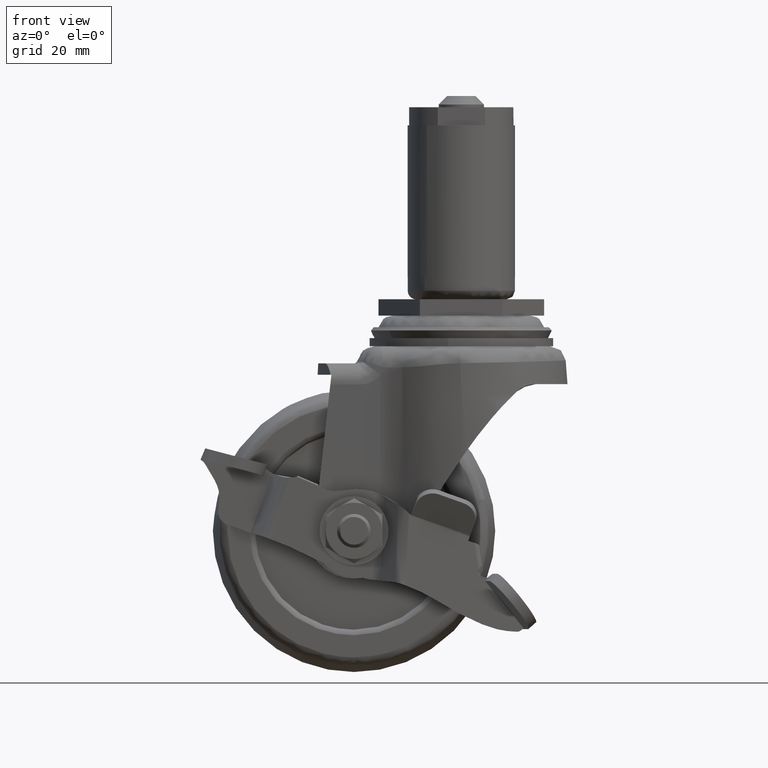
[diagram: clean part render]
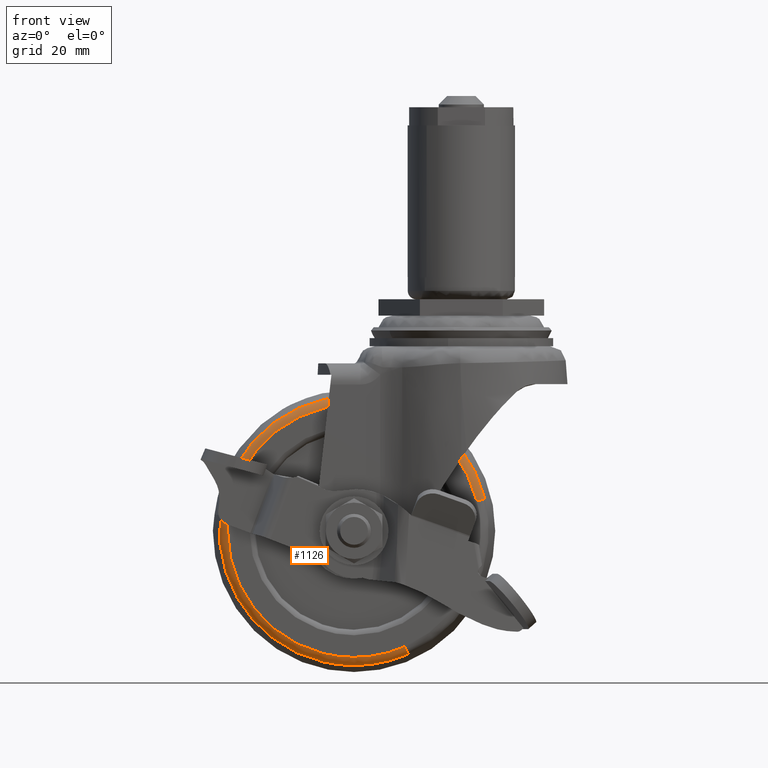
[diagram: same view with one face highlighted and labeled with its STEP entity id]
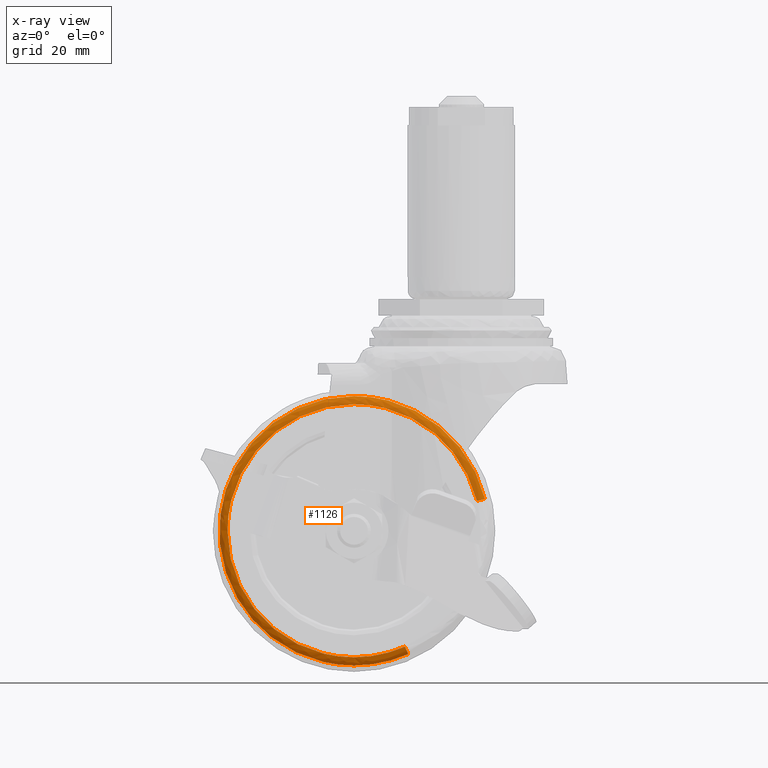
[diagram: x-ray of the same camera — body ghosted, the highlighted face saturated]
A machine part, front view. The second image highlights one B-rep face of the part: STEP entity #1126.
The next image is the same camera in x-ray: the body ghosted, the highlighted face saturated — about 0% of this face is hidden behind the body in this view.
In plain terms, the highlighted face is a freeform B-spline surface patch.
Its self-contained STEP definition (entity closure, byte-faithful):
#904=CARTESIAN_POINT('',(-9.983512796648736,-10.000099000000040,-61.509660136653522));
#905=VERTEX_POINT('',#904);
#906=CARTESIAN_POINT('',(2.768149373497545,-10.000099000000031,-35.701967559477751));
#907=VERTEX_POINT('',#906);
#922=CARTESIAN_POINT('',(-9.399585676374150,-8.880696015885199,-62.837882612725409));
#923=VERTEX_POINT('',#922);
#924=CARTESIAN_POINT('',(-9.399585676374150,-8.880696015885199,-62.837882612725409));
#925=CARTESIAN_POINT('',(-9.414242310403218,-9.019755178015325,-62.804544084594781));
#926=CARTESIAN_POINT('',(-9.463079811340700,-9.306362688196039,-62.693456477697922));
#927=CARTESIAN_POINT('',(-9.588370919504408,-9.670005055202280,-62.408464635189262));
#928=CARTESIAN_POINT('',(-9.768682851084696,-9.934744349092220,-61.998320369022302));
#929=CARTESIAN_POINT('',(-9.909121600165795,-10.000254310191441,-61.678873135638497));
#930=CARTESIAN_POINT('',(-9.983512796648736,-10.000099000000040,-61.509660136653522));
#931=B_SPLINE_CURVE_WITH_KNOTS('',3,(#924,#925,#926,#927,#928,#929,#930),.UNSPECIFIED.,.F.,.U.,(4,1,1,1,4),(0.000000133131363,0.431270441191286,0.924158609362853,1.417036348607001,1.971529071204949),.UNSPECIFIED.);
#932=EDGE_CURVE('',#923,#905,#931,.T.);
#934=CARTESIAN_POINT('',(4.177901481494555,-8.880696018716346,-35.358828339124777));
#935=VERTEX_POINT('',#934);
#952=CARTESIAN_POINT('',(4.177901481494555,-8.880696018716346,-35.358828339124777));
#953=CARTESIAN_POINT('',(4.142513487340865,-9.019750097093699,-35.367441916512497));
#954=CARTESIAN_POINT('',(4.024614092605611,-9.306365248293679,-35.396139094144992));
#955=CARTESIAN_POINT('',(3.722122874043424,-9.670005016321117,-35.469766649291572));
#956=CARTESIAN_POINT('',(3.286804481647721,-9.934741957525047,-35.575724861952359));
#957=CARTESIAN_POINT('',(2.947751594430112,-10.000255496580030,-35.658251671050209));
#958=CARTESIAN_POINT('',(2.768149373497545,-10.000099000000031,-35.701967559477751));
#959=B_SPLINE_CURVE_WITH_KNOTS('',3,(#952,#953,#954,#955,#956,#957,#958),.UNSPECIFIED.,.F.,.U.,(4,1,1,1,4),(0.000000133132127,0.431270414607928,0.924158552394924,1.417036261258652,1.971528949676522),.UNSPECIFIED.);
#960=EDGE_CURVE('',#935,#907,#959,.T.);
#965=CARTESIAN_POINT('',(4.197662554028035,-8.792371263837344,-35.354018416106484));
#966=CARTESIAN_POINT('',(-1.448740029865582,-8.792371263837346,-12.156355862078454));
#967=CARTESIAN_POINT('',(-24.646402583893618,-8.792371263837344,-17.802758445972067));
#968=CARTESIAN_POINT('',(-47.844065137921646,-8.792371263837346,-23.449161029865689));
#969=CARTESIAN_POINT('',(-42.197662554028035,-8.792371263837344,-46.646823583893713));
#970=CARTESIAN_POINT('',(-36.551259970134410,-8.792371263837346,-69.844486137921749));
#971=CARTESIAN_POINT('',(-13.353597416106386,-8.792371263837344,-64.198083554028130));
#972=CARTESIAN_POINT('',(-11.313507039709119,-8.792371263837344,-63.701517507951849));
#973=CARTESIAN_POINT('',(-9.391400531695615,-8.792371263837342,-62.856500849041097));
#974=CARTESIAN_POINT('',(3.949841192374694,-10.076285331351936,-35.414339113225189));
#975=CARTESIAN_POINT('',(-1.636240694400218,-10.076285331351936,-12.464497920850503));
#976=CARTESIAN_POINT('',(-24.586081886774913,-10.076285331351936,-18.050579807625411));
#977=CARTESIAN_POINT('',(-47.535923079149605,-10.076285331351936,-23.636661694400310));
#978=CARTESIAN_POINT('',(-41.949841192374706,-10.076285331351936,-46.586502886775008));
#979=CARTESIAN_POINT('',(-36.363759305599778,-10.076285331351936,-69.536344079149714));
#980=CARTESIAN_POINT('',(-13.413918113225087,-10.076285331351936,-63.950262192374801));
#981=CARTESIAN_POINT('',(-11.395622086745503,-10.076285331351938,-63.459000977050422));
#982=CARTESIAN_POINT('',(-9.494049503257761,-10.076285331351935,-62.623011657792674));
#983=CARTESIAN_POINT('',(2.680285504673770,-9.997370713933062,-35.723353976198382));
#984=CARTESIAN_POINT('',(-2.596781519127948,-9.997370713933062,-14.043068471524618));
#985=CARTESIAN_POINT('',(-24.277067023801724,-9.997370713933062,-19.320135495326337));
#986=CARTESIAN_POINT('',(-45.957352528475482,-9.997370713933062,-24.597202519128039));
#987=CARTESIAN_POINT('',(-40.680285504673783,-9.997370713933062,-46.277488023801830));
#988=CARTESIAN_POINT('',(-35.403218480872042,-9.997370713933062,-67.957773528475585));
#989=CARTESIAN_POINT('',(-13.722932976198278,-9.997370713933062,-62.680706504673886));
#990=CARTESIAN_POINT('',(-11.816286489181856,-9.997370713933066,-62.216621227728936));
#991=CARTESIAN_POINT('',(-10.019906454466312,-9.997370713933064,-61.426877762036113));
#999=(BOUNDED_SURFACE()B_SPLINE_SURFACE(2,2,((#965,#974,#983),(#966,#975,#984),(#967,#976,#985),(#968,#977,#986),(#969,#978,#987),(#970,#979,#988),(#971,#980,#989),(#972,#981,#990),(#973,#982,#991)),.UNSPECIFIED.,.F.,.F.,.U.)B_SPLINE_SURFACE_WITH_KNOTS((3,2,2,2,3),(3,3),(0.0,39.557318353153128,79.114636706306257,118.671955059459410,123.418833261837800),(0.0,2.249885817185783),.UNSPECIFIED.)GEOMETRIC_REPRESENTATION_ITEM()RATIONAL_B_SPLINE_SURFACE(((0.917839954468515,0.692204581920035,0.919596177681326),(0.649010855848639,0.489462553844056,0.650252693191695),(0.917839954468515,0.692204581920035,0.919596177681326),(0.649010855848639,0.489462553844056,0.650252693191695),(0.917839954468515,0.692204581920035,0.919596177681326),(0.649010855848639,0.489462553844056,0.650252693191695),(0.917839954468515,0.692204581920035,0.919596177681326),(0.885580462634130,0.667875538550917,0.887274959542570),(0.861063248839998,0.649385465590388,0.862710833757116)))REPRESENTATION_ITEM('')SURFACE());
#1000=CARTESIAN_POINT('',(-19.0,-10.000099000000080,-63.404124492039401));
#1001=VERTEX_POINT('',#1000);
#1002=CARTESIAN_POINT('',(-19.0,-10.000099000000080,-63.404124492039401));
#1003=CARTESIAN_POINT('',(-17.550056186809190,-10.000099000000059,-63.404280127261721));
#1004=CARTESIAN_POINT('',(-14.456948527587061,-10.000099000000141,-63.102770023646251));
#1005=CARTESIAN_POINT('',(-11.487705536787031,-10.000099000000020,-62.171290814277043));
#1006=CARTESIAN_POINT('',(-9.983512796648736,-10.000099000000040,-61.509660136653522));
#1007=B_SPLINE_CURVE_WITH_KNOTS('',3,(#1002,#1003,#1004,#1005,#1006),.UNSPECIFIED.,.F.,.U.,(4,1,4),(7.319965E-009,4.349807000829228,9.279569039155897),.UNSPECIFIED.);
#1008=EDGE_CURVE('',#1001,#905,#1007,.T.);
#1009=ORIENTED_EDGE('',*,*,#1008,.F.);
#1010=CARTESIAN_POINT('',(-41.403703492039263,-10.000099000000080,-41.000422237602727));
#1011=VERTEX_POINT('',#1010);
#1012=CARTESIAN_POINT('',(-41.403703492039263,-10.000099000000080,-41.000422237602727));
#1013=CARTESIAN_POINT('',(-41.403846926098112,-10.000099000000080,-42.420927829939380));
#1014=CARTESIAN_POINT('',(-41.154463709605537,-10.000099000000111,-45.032739659369987));
#1015=CARTESIAN_POINT('',(-40.161342621958383,-10.000099000000050,-48.621314830072272));
#1016=CARTESIAN_POINT('',(-38.575786541258353,-10.000099000000100,-52.140171261851727));
#1017=CARTESIAN_POINT('',(-36.386437029594283,-10.000099000000089,-55.331392447698292));
#1018=CARTESIAN_POINT('',(-33.785887266402490,-10.000099000000070,-57.931599732759167));
#1019=CARTESIAN_POINT('',(-31.436722354256950,-10.000099000000080,-59.696276723104347));
#1020=CARTESIAN_POINT('',(-29.097370223072961,-10.000099000000080,-61.059678402522913));
#1021=CARTESIAN_POINT('',(-26.231346678625361,-10.000099000000089,-62.298852375052178));
#1022=CARTESIAN_POINT('',(-22.803240909592109,-10.000099000000080,-63.191043622969318));
#1023=CARTESIAN_POINT('',(-20.237203626819849,-10.000099000000080,-63.404217520361343));
#1024=CARTESIAN_POINT('',(-19.0,-10.000099000000080,-63.404124492039401));
#1025=B_SPLINE_CURVE_WITH_KNOTS('',3,(#1012,#1013,#1014,#1015,#1016,#1017,#1018,#1019,#1020,#1021,#1022,#1023,#1024),.UNSPECIFIED.,.F.,.U.,(4,1,1,1,1,1,1,1,1,1,4),(0.000000101872097,4.261489500074262,7.835647964956984,11.134894479324650,15.808826176388290,19.382885958286469,22.132252931936840,24.606690034465959,27.493526738162711,31.480104568105421,35.191709659859107),.UNSPECIFIED.);
#1026=EDGE_CURVE('',#1011,#1001,#1025,.T.);
#1027=ORIENTED_EDGE('',*,*,#1026,.F.);
#1028=CARTESIAN_POINT('',(-19.0,-10.000099000000080,-18.596717507960800));
#1029=VERTEX_POINT('',#1028);
#1030=CARTESIAN_POINT('',(-19.0,-10.000099000000080,-18.596717507960800));
#1031=CARTESIAN_POINT('',(-20.420506612648062,-10.000099000000070,-18.596564556759290));
#1032=CARTESIAN_POINT('',(-23.032317231724520,-10.000099000000111,-18.845968818731301));
#1033=CARTESIAN_POINT('',(-26.620901128653578,-10.000099000000059,-19.839062737931862));
#1034=CARTESIAN_POINT('',(-29.846457811027129,-10.000099000000089,-21.292588748821519));
#1035=CARTESIAN_POINT('',(-32.423552989099392,-10.000099000000120,-22.980494427025992));
#1036=CARTESIAN_POINT('',(-34.820539878671710,-10.000099000000009,-25.048154233977339));
#1037=CARTESIAN_POINT('',(-37.058828613948272,-10.000099000000089,-27.548280246576709));
#1038=CARTESIAN_POINT('',(-39.243003580579298,-10.000099000000301,-31.068418593416290));
#1039=CARTESIAN_POINT('',(-40.958047238545987,-10.000098999999819,-35.639446668516960));
#1040=CARTESIAN_POINT('',(-41.404261662848597,-10.000099000000370,-39.075833058482253));
#1041=CARTESIAN_POINT('',(-41.403703492039263,-10.000099000000080,-41.000422237602727));
#1042=B_SPLINE_CURVE_WITH_KNOTS('',3,(#1030,#1031,#1032,#1033,#1034,#1035,#1036,#1037,#1038,#1039,#1040,#1041),.UNSPECIFIED.,.F.,.U.,(4,1,1,1,1,1,1,1,1,4),(0.000000101662351,4.261489668948073,7.835648275412769,11.134894920594281,14.846544573661889,17.046034516797089,20.620101626972762,24.881627510594750,29.418094414460139,35.191711054928227),.UNSPECIFIED.);
#1043=EDGE_CURVE('',#1029,#1011,#1042,.T.);
#1044=ORIENTED_EDGE('',*,*,#1043,.F.);
#1045=CARTESIAN_POINT('',(2.768149373497545,-10.000099000000031,-35.701967559477751));
#1046=CARTESIAN_POINT('',(2.345852489082182,-10.000099000000050,-33.965079580628768));
#1047=CARTESIAN_POINT('',(1.356641858348208,-10.000099000000050,-31.326672874608679));
#1048=CARTESIAN_POINT('',(-0.705431185392307,-10.000099000000031,-27.931210167488839));
#1049=CARTESIAN_POINT('',(-2.793055639295405,-10.000099000000150,-25.409154327500691));
#1050=CARTESIAN_POINT('',(-5.467733360097811,-10.000099000000050,-23.022958163215321));
#1051=CARTESIAN_POINT('',(-8.494678057570766,-10.000098999999951,-21.094835193466199));
#1052=CARTESIAN_POINT('',(-12.011882472165700,-10.000099000000191,-19.605125387971949));
#1053=CARTESIAN_POINT('',(-15.502828790132170,-10.000099000000031,-18.772474582626039));
#1054=CARTESIAN_POINT('',(-17.912001271547339,-10.000099000000100,-18.596678236557391));
#1055=CARTESIAN_POINT('',(-19.0,-10.000099000000080,-18.596717507960800));
#1056=B_SPLINE_CURVE_WITH_KNOTS('',3,(#1045,#1046,#1047,#1048,#1049,#1050,#1051,#1052,#1053,#1054,#1055),.UNSPECIFIED.,.F.,.U.,(4,1,1,1,1,1,1,1,4),(0.000000029406447,5.362336618396157,8.393254727632385,11.890464908831540,15.154465294891210,19.117950028842600,22.615139835644381,26.578640691451898,29.842658272346551),.UNSPECIFIED.);
#1057=EDGE_CURVE('',#907,#1029,#1056,.T.);
#1058=ORIENTED_EDGE('',*,*,#1057,.F.);
#1059=ORIENTED_EDGE('',*,*,#960,.F.);
#1060=CARTESIAN_POINT('',(-19.0,-8.880696014993557,-17.145805411320168));
#1061=VERTEX_POINT('',#1060);
#1062=CARTESIAN_POINT('',(4.177901481494555,-8.880696018716346,-35.358828339124777));
#1063=CARTESIAN_POINT('',(3.845344327695349,-8.880696018432950,-33.991986553820659));
#1064=CARTESIAN_POINT('',(3.097536393508534,-8.880696017976863,-31.789471687644429));
#1065=CARTESIAN_POINT('',(1.662940428606489,-8.880696017397703,-28.985580008024289));
#1066=CARTESIAN_POINT('',(0.113902293670163,-8.880696016912538,-26.632408212386270));
#1067=CARTESIAN_POINT('',(-1.974369835748819,-8.880696016404640,-24.162297512951898));
#1068=CARTESIAN_POINT('',(-4.788326459854426,-8.880696015901243,-21.703909923820781));
#1069=CARTESIAN_POINT('',(-8.182981683357518,-8.880696015476474,-19.615372736688439));
#1070=CARTESIAN_POINT('',(-11.338198799137579,-8.880696015219456,-18.336766082355361));
#1071=CARTESIAN_POINT('',(-14.945453088614739,-8.880696015034211,-17.396582531532939));
#1072=CARTESIAN_POINT('',(-17.345021164602759,-8.880696014988624,-17.145527409739682));
#1073=CARTESIAN_POINT('',(-19.0,-8.880696014993557,-17.145805411320168));
#1074=B_SPLINE_CURVE_WITH_KNOTS('',3,(#1062,#1063,#1064,#1065,#1066,#1067,#1068,#1069,#1070,#1071,#1072,#1073),.UNSPECIFIED.,.F.,.U.,(4,1,1,1,1,1,1,1,1,4),(0.000000014700824,4.220137284017593,6.950854220785672,9.433312255357116,12.660509163594300,16.632391598677810,20.604293755891021,24.576236339808428,26.810459106600430,31.775333050948131),.UNSPECIFIED.);
#1075=EDGE_CURVE('',#935,#1061,#1074,.T.);
#1076=ORIENTED_EDGE('',*,*,#1075,.T.);
#1077=CARTESIAN_POINT('',(-42.695067302989600,-8.880696014956291,-38.246066195159052));
#1078=VERTEX_POINT('',#1077);
#1079=CARTESIAN_POINT('',(-19.0,-8.880696014993557,-17.145805411320168));
#1080=CARTESIAN_POINT('',(-20.220271841139262,-8.880696014989665,-17.145756782400891));
#1081=CARTESIAN_POINT('',(-22.886823023206212,-8.880696014981449,-17.350771331315869));
#1082=CARTESIAN_POINT('',(-26.453560272060379,-8.880696014971683,-18.240270923015469));
#1083=CARTESIAN_POINT('',(-29.960327177469129,-8.880696014963121,-19.714168437234530));
#1084=CARTESIAN_POINT('',(-32.713207582566021,-8.880696014957438,-21.385546131395959));
#1085=CARTESIAN_POINT('',(-35.342237587158372,-8.880696014952825,-23.533034021650600));
#1086=CARTESIAN_POINT('',(-37.647797726678007,-8.880696014949969,-25.968410881881471));
#1087=CARTESIAN_POINT('',(-39.521639202417852,-8.880696014949127,-28.697531543280281));
#1088=CARTESIAN_POINT('',(-41.053120366682180,-8.880696014949441,-31.726519647578399));
#1089=CARTESIAN_POINT('',(-42.118717005476377,-8.880696014951869,-34.764083313296183));
#1090=CARTESIAN_POINT('',(-42.564641786671316,-8.880696014954642,-37.123741606354969));
#1091=CARTESIAN_POINT('',(-42.695067302989600,-8.880696014956291,-38.246066195159052));
#1092=B_SPLINE_CURVE_WITH_KNOTS('',3,(#1079,#1080,#1081,#1082,#1083,#1084,#1085,#1086,#1087,#1088,#1089,#1090,#1091),.UNSPECIFIED.,.F.,.U.,(4,1,1,1,1,1,1,1,1,1,4),(0.000000081857529,3.660825504258519,7.999634857753545,10.982563871691941,15.050193419710810,17.626294631428920,21.151572189821341,25.083592883261741,27.524172570946671,31.320639099726439,34.710277279693202),.UNSPECIFIED.);
#1093=EDGE_CURVE('',#1061,#1078,#1092,.T.);
#1094=ORIENTED_EDGE('',*,*,#1093,.T.);
#1095=CARTESIAN_POINT('',(-19.0,-8.880696014925480,-64.855036588697899));
#1096=VERTEX_POINT('',#1095);
#1097=CARTESIAN_POINT('',(-42.695067302989600,-8.880696014956291,-38.246066195159052));
#1098=CARTESIAN_POINT('',(-42.834250292406807,-8.880696014953887,-39.442843111909852));
#1099=CARTESIAN_POINT('',(-42.930696298350163,-8.880696014949171,-41.857523403933079));
#1100=CARTESIAN_POINT('',(-42.515532316658678,-8.880696014942417,-45.564334636890699));
#1101=CARTESIAN_POINT('',(-41.591230538725561,-8.880696014936863,-48.908048298494357));
#1102=CARTESIAN_POINT('',(-40.143534369008719,-8.880696014931644,-52.226953630396437));
#1103=CARTESIAN_POINT('',(-38.006173813695582,-8.880696014927036,-55.665164375084707));
#1104=CARTESIAN_POINT('',(-34.843348022335597,-8.880696014922942,-59.056281945761391));
#1105=CARTESIAN_POINT('',(-31.407026284484601,-8.880696014921670,-61.488370362279881));
#1106=CARTESIAN_POINT('',(-28.446267081974661,-8.880696014920948,-62.959391319769153));
#1107=CARTESIAN_POINT('',(-25.587347733684361,-8.880696014921583,-64.000369736566654));
#1108=CARTESIAN_POINT('',(-22.457354541534428,-8.880696014922837,-64.691719750328204));
#1109=CARTESIAN_POINT('',(-20.100061154865561,-8.880696014924553,-64.855079044142741));
#1110=CARTESIAN_POINT('',(-19.0,-8.880696014925480,-64.855036588697899));
#1111=B_SPLINE_CURVE_WITH_KNOTS('',3,(#1097,#1098,#1099,#1100,#1101,#1102,#1103,#1104,#1105,#1106,#1107,#1108,#1109,#1110),.UNSPECIFIED.,.F.,.U.,(4,1,1,1,1,1,1,1,1,1,1,4),(0.000000115400660,3.614527179604529,7.229065156186223,11.157911331447110,13.986677610748700,18.072691759382408,23.258688927383421,27.816191656388451,30.644958124819588,33.159426560367251,36.931140311160313,40.231327283508847),.UNSPECIFIED.);
#1112=EDGE_CURVE('',#1078,#1096,#1111,.T.);
#1113=ORIENTED_EDGE('',*,*,#1112,.T.);
#1114=CARTESIAN_POINT('',(-19.0,-8.880696014925480,-64.855036588697899));
#1115=CARTESIAN_POINT('',(-17.816389844068041,-8.880696014925412,-64.855107089168911));
#1116=CARTESIAN_POINT('',(-15.706511494687460,-8.880696015000384,-64.697665578951131));
#1117=CARTESIAN_POINT('',(-12.477909165228350,-8.880696015323080,-64.019308210509948));
#1118=CARTESIAN_POINT('',(-10.483081470658560,-8.880696015658545,-63.314293419520183));
#1119=CARTESIAN_POINT('',(-9.399585676374150,-8.880696015885199,-62.837882612725409));
#1120=B_SPLINE_CURVE_WITH_KNOTS('',3,(#1114,#1115,#1116,#1117,#1118,#1119),.UNSPECIFIED.,.F.,.U.,(4,1,1,4),(7.796130E-009,3.550823986617736,6.329709935152115,9.880533913973300),.UNSPECIFIED.);
#1121=EDGE_CURVE('',#1096,#923,#1120,.T.);
#1122=ORIENTED_EDGE('',*,*,#1121,.T.);
#1123=ORIENTED_EDGE('',*,*,#932,.T.);
#1124=EDGE_LOOP('',(#1009,#1027,#1044,#1058,#1059,#1076,#1094,#1113,#1122,#1123));
#1125=FACE_OUTER_BOUND('',#1124,.T.);
#1126=ADVANCED_FACE('',(#1125),#999,.T.);